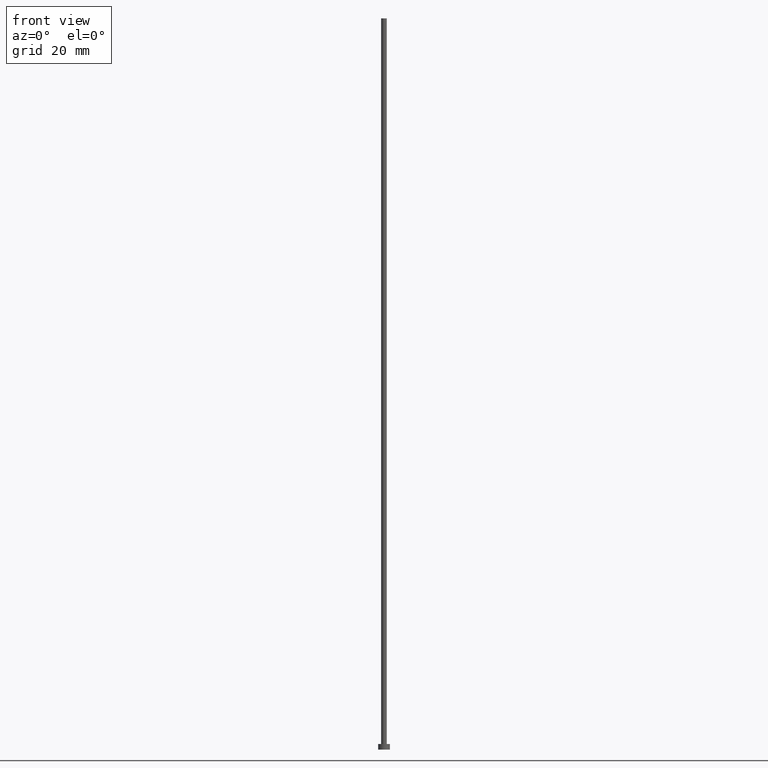
[diagram: clean part render]
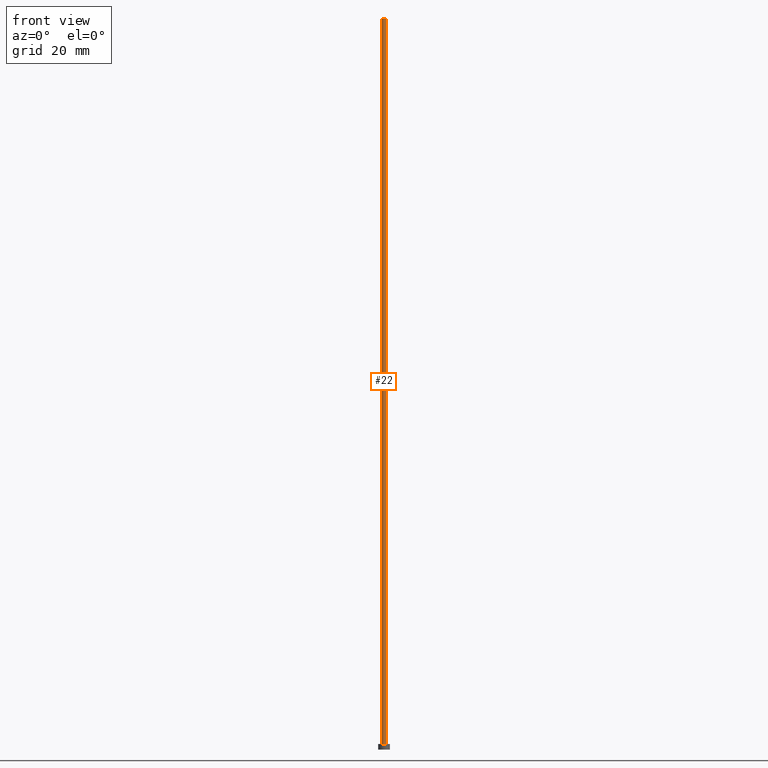
[diagram: same view with one face highlighted and labeled with its STEP entity id]
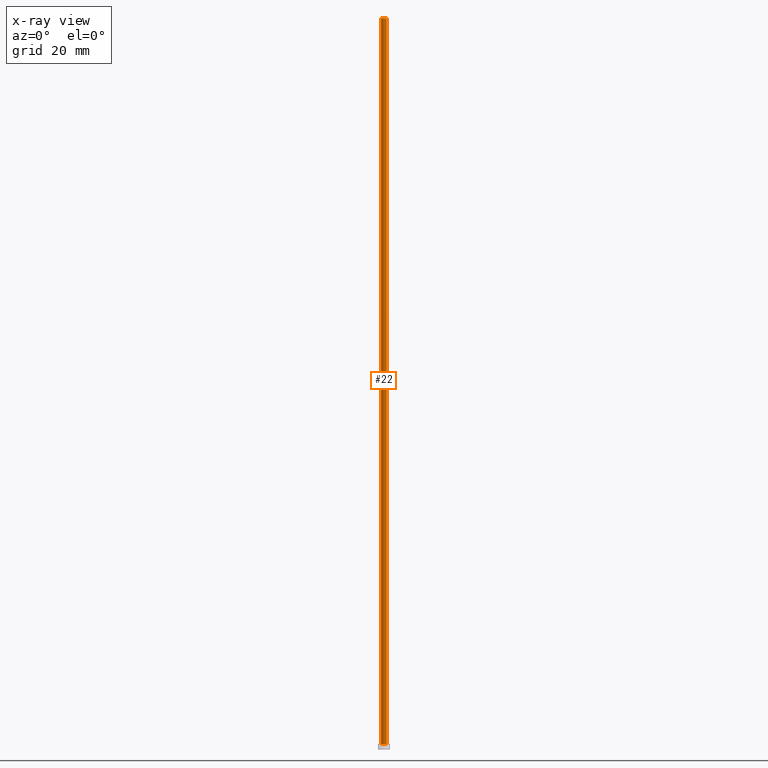
[diagram: x-ray of the same camera — body ghosted, the highlighted face saturated]
A machine part, front view. The second image highlights one B-rep face of the part: STEP entity #22.
The next image is the same camera in x-ray: the body ghosted, the highlighted face saturated — about 0% of this face is hidden behind the body in this view.
In plain terms, the highlighted cylindrical surface (edge-blend (fillet) strip) has radius 0.6 mm, axis along (-0, -0, -1).
Its self-contained STEP definition (entity closure, byte-faithful):
#15 = VERTEX_POINT ( 'NONE', #152 ) ;
#22 = ADVANCED_FACE ( 'NONE', ( #70 ), #75, .T. ) ;
#26 = VERTEX_POINT ( 'NONE', #133 ) ;
#28 = DIRECTION ( 'NONE',  ( -0.000000000000000000, -0.000000000000000000, -1.000000000000000000 ) ) ;
#31 = ORIENTED_EDGE ( 'NONE', *, *, #163, .T. ) ;
#42 = DIRECTION ( 'NONE',  ( 1.000000000000000000, 0.000000000000000000, 0.000000000000000000 ) ) ;
#56 = EDGE_CURVE ( 'NONE', #15, #104, #158, .T. ) ;
#64 = VECTOR ( 'NONE', #138, 1000.000000000000000 ) ;
#70 = FACE_OUTER_BOUND ( 'NONE', #179, .T. ) ;
#75 = CYLINDRICAL_SURFACE ( 'NONE', #241, 0.5999999999999999778 ) ;
#76 = DIRECTION ( 'NONE',  ( -0.000000000000000000, -0.000000000000000000, -1.000000000000000000 ) ) ;
#90 = LINE ( 'NONE', #196, #217 ) ;
#104 = VERTEX_POINT ( 'NONE', #141 ) ;
#107 = ORIENTED_EDGE ( 'NONE', *, *, #140, .T. ) ;
#118 = ORIENTED_EDGE ( 'NONE', *, *, #232, .F. ) ;
#119 = LINE ( 'NONE', #159, #64 ) ;
#127 = VERTEX_POINT ( 'NONE', #214 ) ;
#130 = DIRECTION ( 'NONE',  ( 1.000000000000000000, 0.000000000000000000, 0.000000000000000000 ) ) ;
#131 = CARTESIAN_POINT ( 'NONE',  ( 0.000000000000000000, 0.000000000000000000, 156.0000000000000284 ) ) ;
#133 = CARTESIAN_POINT ( 'NONE',  ( 0.5999999999999999778, 7.347880794884117764E-17, 1.199999999999999956 ) ) ;
#135 = CARTESIAN_POINT ( 'NONE',  ( 0.000000000000000000, 0.000000000000000000, 156.0000000000000284 ) ) ;
#138 = DIRECTION ( 'NONE',  ( -0.000000000000000000, -0.000000000000000000, -1.000000000000000000 ) ) ;
#139 = CIRCLE ( 'NONE', #174, 0.5999999999999999778 ) ;
#140 = EDGE_CURVE ( 'NONE', #15, #127, #119, .T. ) ;
#141 = CARTESIAN_POINT ( 'NONE',  ( 0.5999999999999999778, 7.347880794884117764E-17, 156.0000000000000284 ) ) ;
#149 = DIRECTION ( 'NONE',  ( -1.000000000000000000, 0.000000000000000000, 0.000000000000000000 ) ) ;
#152 = CARTESIAN_POINT ( 'NONE',  ( -0.5999999999999999778, 0.000000000000000000, 156.0000000000000284 ) ) ;
#158 = CIRCLE ( 'NONE', #186, 0.5999999999999999778 ) ;
#159 = CARTESIAN_POINT ( 'NONE',  ( -0.5999999999999999778, 0.000000000000000000, 156.0000000000000284 ) ) ;
#163 = EDGE_CURVE ( 'NONE', #127, #26, #139, .T. ) ;
#170 = CARTESIAN_POINT ( 'NONE',  ( 0.000000000000000000, 0.000000000000000000, 1.199999999999999956 ) ) ;
#174 = AXIS2_PLACEMENT_3D ( 'NONE', #170, #210, #42 ) ;
#179 = EDGE_LOOP ( 'NONE', ( #118, #221, #107, #31 ) ) ;
#186 = AXIS2_PLACEMENT_3D ( 'NONE', #131, #229, #130 ) ;
#196 = CARTESIAN_POINT ( 'NONE',  ( 0.5999999999999999778, 7.347880794884117764E-17, 156.0000000000000284 ) ) ;
#210 = DIRECTION ( 'NONE',  ( 0.000000000000000000, 0.000000000000000000, 1.000000000000000000 ) ) ;
#214 = CARTESIAN_POINT ( 'NONE',  ( -0.5999999999999999778, 0.000000000000000000, 1.199999999999999956 ) ) ;
#217 = VECTOR ( 'NONE', #28, 1000.000000000000000 ) ;
#221 = ORIENTED_EDGE ( 'NONE', *, *, #56, .F. ) ;
#229 = DIRECTION ( 'NONE',  ( 0.000000000000000000, 0.000000000000000000, 1.000000000000000000 ) ) ;
#232 = EDGE_CURVE ( 'NONE', #104, #26, #90, .T. ) ;
#241 = AXIS2_PLACEMENT_3D ( 'NONE', #135, #76, #149 ) ;